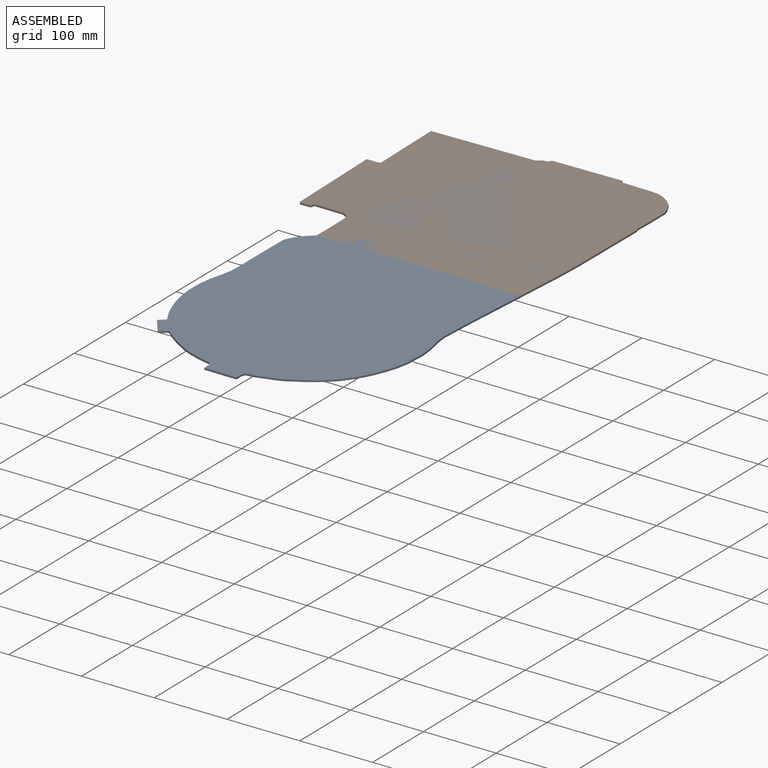
[diagram: assembled view]
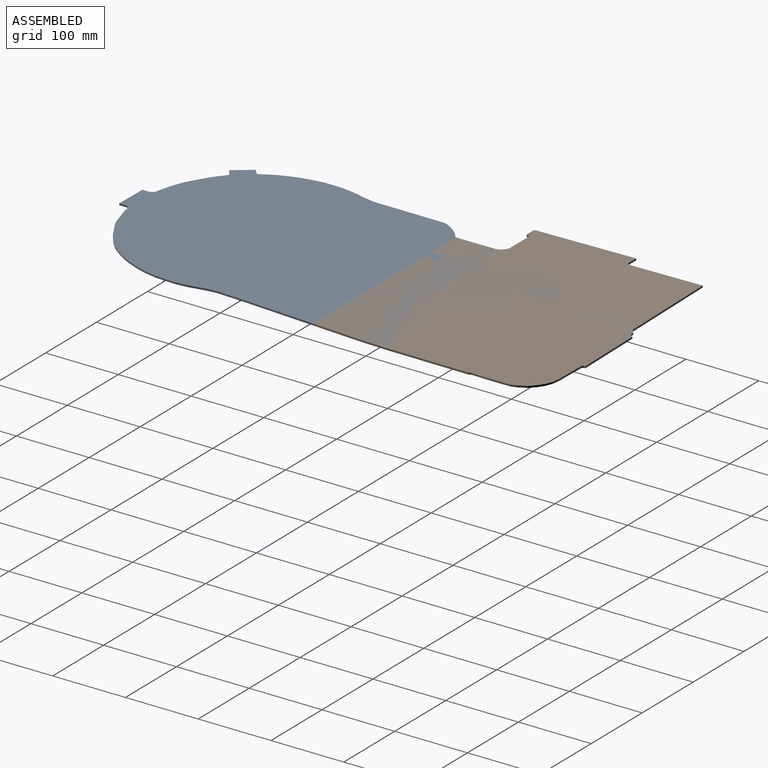
[diagram: assembled view, second angle]
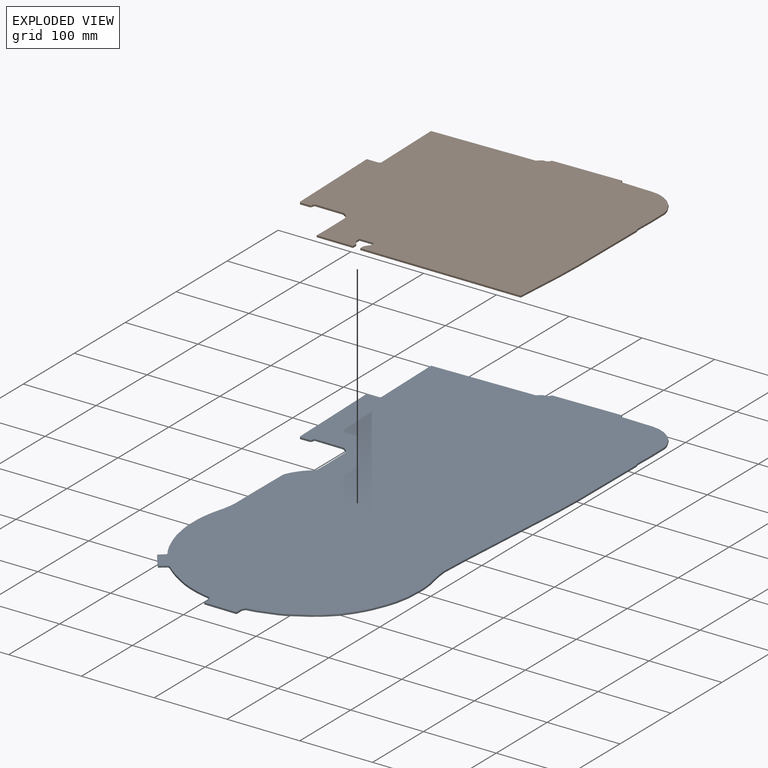
[diagram: exploded view]
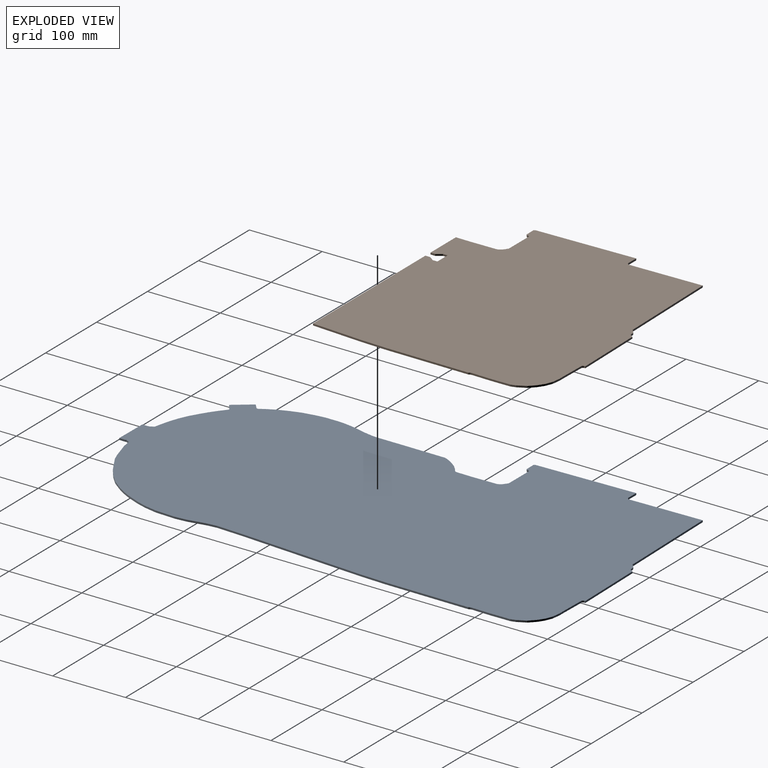
[diagram: exploded view, second angle]
ASSEMBLY  parts=2 mates=2
PART A: 99 faces, bbox 357.5x678.8x2.4 mm
  f0: plane 2.39x1.94mm, normal (0.72,-0.69,0), area 6.4mm2, adj f1,f2,f59,f96
  f1: plane 678.82x357.54mm, normal (0,0,1), area 200735.4mm2, adj f0,f3,f4,f5,f6,f7,f8,f9
  f2: plane 678.82x357.54mm, normal (0,0,-1), area 200735.4mm2, adj f0,f3,f4,f5,f6,f7,f8,f9
  f3: plane 135.35x2.9mm, normal (-0.02,1,0), area 323.2mm2, adj f1,f2,f4,f89
  f4: plane 100.57x2.39mm, normal (-1,-0.02,0), area 240.2mm2, adj f1,f2,f3,f5
  f5: plane 2.39x1.62mm, normal (-0.8,0.6,0), area 4.9mm2, adj f1,f2,f4,f6
  f6: plane 2.39x2.22mm, normal (-0.3,0.95,0), area 5.6mm2, adj f1,f2,f5,f7
  f7: plane 15.06x2.39mm, normal (0.01,1,0), area 36mm2, adj f1,f2,f6,f8
  f8: plane 70.21x2.39mm, normal (-1,-0.03,0), area 167.7mm2, adj f1,f2,f7,f9
  f9: plane 65.93x2.39mm, normal (-1,-0.03,0), area 157.5mm2, adj f1,f2,f8,f10
  f10: plane 2.39x1.71mm, normal (-0.79,-0.61,0), area 5.2mm2, adj f1,f2,f9,f11
  f11: plane 13.63x2.39mm, normal (0.01,-1,0), area 32.6mm2, adj f1,f2,f10,f12
  f12: plane 2.39x1.59mm, normal (0.67,-0.74,0), area 5.1mm2, adj f1,f2,f11,f13
  f13: plane 2.53x2.39mm, normal (1,0,0), area 6mm2, adj f1,f2,f12,f14
  f14: plane 2.39x1.56mm, normal (0.67,-0.74,0), area 5mm2, adj f1,f2,f13,f15
  f15: plane 39.11x2.39mm, normal (-0.01,-1,0), area 93.4mm2, adj f1,f2,f14,f16
  f16: plane 4.38x2.9mm, normal (-0.55,-0.83,0), area 12.5mm2, adj f1,f2,f15,f17
  f17: plane 2.5x2.39mm, normal (-0.67,-0.74,0), area 8mm2, adj f1,f2,f16,f18
  f18: plane 3.49x2.39mm, normal (-0.85,-0.53,0), area 9.8mm2, adj f1,f2,f17,f19
  f19: plane 2.68x2.39mm, normal (-0.99,-0.11,0), area 6.4mm2, adj f1,f2,f18,f20
  f20: plane 32.8x2.39mm, normal (-1,-0.01,0), area 78.3mm2, adj f1,f2,f19,f21
  f21: plane 18.14x2.39mm, normal (-1,0.01,0), area 43.3mm2, adj f1,f2,f20,f22
  f22: plane 3.85x2.39mm, normal (-1,0.07,0), area 9.2mm2, adj f1,f2,f21,f23
  f23: plane 2.39x2.03mm, normal (-0.85,0.53,0), area 5.7mm2, adj f1,f2,f22,f24
  f24: plane 4.93x3.79mm, normal (-0.61,0.79,0), area 14.8mm2, adj f1,f2,f23,f25
  f25: plane 4.8x4.67mm, normal (-0.7,0.72,0), area 16mm2, adj f1,f2,f24,f26
  f26: plane 3.64x2.92mm, normal (-0.78,0.63,0), area 11.1mm2, adj f1,f2,f25,f27
  f27: plane 6.57x4.67mm, normal (-0.81,0.58,0), area 19.2mm2, adj f1,f2,f26,f28
  f28: plane 7.3x3.88mm, normal (-0.88,0.47,0), area 19.7mm2, adj f1,f2,f27,f29
  f29: plane 4.11x2.39mm, normal (-0.95,0.3,0), area 10.3mm2, adj f1,f2,f28,f30
  f30: plane 35.08x2.39mm, normal (-1,0.01,0), area 83.8mm2, adj f1,f2,f29,f31
  f31: plane 14.67x2.39mm, normal (-1,0.01,0), area 35mm2, adj f1,f2,f30,f32
  f32: plane 42.04x2.39mm, normal (-1,0,0), area 100.4mm2, adj f1,f2,f31,f33
  f33: plane 8.42x2.39mm, normal (-1,0.07,0), area 20.1mm2, adj f1,f2,f32,f34
  f34: plane 12.54x2.39mm, normal (-0.98,0.18,0), area 30.4mm2, adj f1,f2,f33,f35
  f35: plane 10.46x2.83mm, normal (-0.97,0.26,0), area 25.9mm2, adj f1,f2,f34,f36
  f36: plane 9.97x2.39mm, normal (-0.98,0.21,0), area 24.4mm2, adj f1,f2,f35,f37
  f37: plane 12.1x2.39mm, normal (-0.99,0.15,0), area 29.2mm2, adj f1,f2,f36,f38
  f38: plane 7.55x2.39mm, normal (-1,0.07,0), area 18.1mm2, adj f1,f2,f37,f39
  f39: plane 18.33x2.39mm, normal (-1,0,0), area 43.8mm2, adj f1,f2,f38,f40
  f40: plane 12.62x2.39mm, normal (-0.99,-0.12,0), area 30.3mm2, adj f1,f2,f39,f41
  f41: plane 16.99x3.19mm, normal (-0.98,-0.18,0), area 41.3mm2, adj f1,f2,f40,f42
  f42: plane 13.39x4.21mm, normal (-0.95,-0.3,0), area 33.5mm2, adj f1,f2,f41,f43
  f43: plane 14.47x5.66mm, normal (-0.93,-0.36,0), area 37.1mm2, adj f1,f2,f42,f44
  f44: plane 11.96x6.09mm, normal (-0.89,-0.45,0), area 32mm2, adj f1,f2,f43,f45
  f45: plane 3.83x2.51mm, normal (-0.84,-0.55,0), area 10.9mm2, adj f1,f2,f44,f46
  f46: plane 2.39x2.26mm, normal (-0.86,-0.51,0), area 6.3mm2, adj f1,f2,f45,f47
  f47: plane 2.39x2.09mm, normal (-1,0,0), area 5mm2, adj f1,f2,f46,f48
  f48: plane 7.46x6.38mm, normal (-0.65,0.76,0), area 23.4mm2, adj f1,f2,f47,f49
  f49: plane 2.39x0.85mm, normal (-0.98,0.21,0), area 2.1mm2, adj f1,f2,f48,f50
  f50: plane 22.91x17.15mm, normal (-0.8,-0.6,0), area 68.3mm2, adj f1,f2,f49,f51
  f51: plane 2.39x0.78mm, normal (-0.44,-0.9,0), area 2.1mm2, adj f1,f2,f50,f52
  f52: plane 8.43x6.55mm, normal (0.61,-0.79,0), area 25.5mm2, adj f1,f2,f51,f53
  f53: plane 2.39x1.88mm, normal (-0.01,-1,0), area 4.5mm2, adj f1,f2,f52,f54
  f54: plane 2.39x0.81mm, normal (-0.44,-0.9,0), area 2.2mm2, adj f1,f2,f53,f90
  f55: plane 2.39x2.36mm, normal (-0.99,-0.16,0), area 5.7mm2, adj f1,f2,f56,f91
  f56: plane 7.73x2.39mm, normal (-1,0,0), area 18.5mm2, adj f1,f2,f55,f98
  f57: plane 8.19x2.39mm, normal (1,-0.01,0), area 19.5mm2, adj f1,f2,f58,f98
  f58: plane 2.39x1.26mm, normal (0.96,0.27,0), area 3.1mm2, adj f1,f2,f57,f95
  f59: plane 13.22x10.03mm, normal (0.8,-0.6,0), area 39.6mm2, adj f0,f1,f2,f60
  f60: plane 10.35x6.47mm, normal (0.85,-0.53,0), area 29.1mm2, adj f1,f2,f59,f61
  f61: plane 9.3x4.94mm, normal (0.88,-0.47,0), area 25.1mm2, adj f1,f2,f60,f62
  f62: plane 17.53x7.34mm, normal (0.92,-0.39,0), area 45.4mm2, adj f1,f2,f61,f63
  f63: plane 13.22x4.18mm, normal (0.95,-0.3,0), area 33.1mm2, adj f1,f2,f62,f64
  f64: plane 17.1x3.42mm, normal (0.98,-0.2,0), area 41.6mm2, adj f1,f2,f63,f65
  f65: plane 27.11x2.39mm, normal (1,-0.05,0), area 64.8mm2, adj f1,f2,f64,f66
  f66: plane 15.57x2.39mm, normal (1,0.09,0), area 37.3mm2, adj f1,f2,f65,f67
  f67: plane 24.62x4.8mm, normal (0.98,0.19,0), area 59.9mm2, adj f1,f2,f66,f68
  f68: plane 13.09x2.39mm, normal (0.99,0.1,0), area 31.4mm2, adj f1,f2,f67,f69
  f69: plane 38.93x2.39mm, normal (1,-0.05,0), area 93.1mm2, adj f1,f2,f68,f70
  f70: plane 166.87x11.39mm, normal (1,-0.07,0), area 399.4mm2, adj f1,f2,f69,f71
  f71: plane 37.15x2.39mm, normal (1,-0.04,0), area 88.8mm2, adj f1,f2,f70,f72
  f72: plane 112.75x2.39mm, normal (1,-0.01,0), area 269.2mm2, adj f1,f2,f71,f73
  f73: plane 2.39x1.92mm, normal (0.88,0.47,0), area 5.2mm2, adj f1,f2,f72,f74
  f74: plane 2.61x2.39mm, normal (0.99,0.12,0), area 6.3mm2, adj f1,f2,f73,f75
  f75: plane 25.38x2.39mm, normal (1,-0.02,0), area 60.6mm2, adj f1,f2,f74,f76
  f76: plane 27.2x2.39mm, normal (1,0.01,0), area 65mm2, adj f1,f2,f75,f77
  f77: plane 6.57x2.39mm, normal (0.96,0.29,0), area 16.4mm2, adj f1,f2,f76,f78
  f78: plane 11.29x5.9mm, normal (0.89,0.46,0), area 30.4mm2, adj f1,f2,f77,f79
  f79: plane 7.95x7.95mm, normal (0.71,0.71,0), area 26.9mm2, adj f1,f2,f78,f80
  f80: plane 8.07x5.44mm, normal (0.56,0.83,0), area 23.2mm2, adj f1,f2,f79,f81
  f81: plane 9.04x3.74mm, normal (0.38,0.92,0), area 23.4mm2, adj f1,f2,f80,f82
  f82: plane 11.39x2.39mm, normal (0.14,0.99,0), area 27.5mm2, adj f1,f2,f81,f83
  f83: plane 8.2x2.39mm, normal (0,1,0), area 19.6mm2, adj f1,f2,f82,f84
  f84: plane 34.27x2.39mm, normal (0.02,1,0), area 81.8mm2, adj f1,f2,f83,f85
  f85: plane 2.39x2.09mm, normal (0.85,0.53,0), area 5.9mm2, adj f1,f2,f84,f86
  f86: plane 2.39x1.81mm, normal (1,0,0), area 4.3mm2, adj f1,f2,f85,f87
  f87: plane 94.99x2.39mm, normal (-0.02,1,0), area 226.8mm2, adj f1,f2,f86,f88
  f88: extruded ~15.4x10.42mm, area 46.8mm2, adj f1,f2,f87,f89
  f89: plane 6.35x2.39mm, normal (0,1,0), area 15.2mm2, adj f1,f2,f3,f88
  f90: cylinder r=180.26mm len=27.75mm, axis (0,0,1), area 82mm2, adj f1,f2,f54,f94
  f91: plane 4.85x2.99mm, normal (-0.85,-0.53,0), area 13.6mm2, adj f1,f2,f55,f92
  f92: plane 9.34x2.39mm, normal (-0.21,-0.98,0), area 22.8mm2, adj f1,f2,f91,f93
  f93: cylinder r=147.47mm len=35.22mm, axis (0,0,1), area 89.5mm2, adj f1,f2,f92,f94
  f94: plane 11.73x6.91mm, normal (-0.51,-0.86,0), area 32.5mm2, adj f1,f2,f90,f93
  f95: plane 5.23x2.43mm, normal (0.91,-0.42,0), area 13.8mm2, adj f1,f2,f58,f97
  f96: extruded ~82.24x45.05mm, area 226.9mm2, adj f0,f1,f2,f97
  f97: plane 12.06x2.39mm, normal (0.16,-0.99,0), area 29.2mm2, adj f1,f2,f95,f96
  f98: plane 44.48x2.39mm, normal (-0.01,-1,0), area 106.2mm2, adj f1,f2,f56,f57
PART B: 51 faces, bbox 357.5x316.6x2.4 mm
  f0: plane 50x2.39mm, normal (0,-1,0), area 119.4mm2, adj f2,f3,f23,f50
  f1: plane 68.27x4.66mm, normal (1,-0.07,0), area 163.4mm2, adj f2,f3,f24,f43
  f2: plane 357.54x316.57mm, normal (0,0,1), area 102634.3mm2, adj f0,f1,f4,f5,f6,f7,f8,f9
  f3: plane 357.54x316.57mm, normal (0,0,-1), area 102634.3mm2, adj f0,f1,f4,f5,f6,f7,f8,f9
  f4: plane 135.35x2.9mm, normal (-0.02,1,0), area 323.2mm2, adj f2,f3,f5,f42
  f5: plane 100.57x2.39mm, normal (-1,-0.02,0), area 240.2mm2, adj f2,f3,f4,f6
  f6: plane 2.39x1.62mm, normal (-0.8,0.6,0), area 4.9mm2, adj f2,f3,f5,f7
  f7: plane 2.39x2.22mm, normal (-0.3,0.95,0), area 5.6mm2, adj f2,f3,f6,f8
  f8: plane 15.06x2.39mm, normal (0.01,1,0), area 36mm2, adj f2,f3,f7,f9
  f9: plane 70.21x2.39mm, normal (-1,-0.03,0), area 167.7mm2, adj f2,f3,f8,f10
  f10: plane 65.93x2.39mm, normal (-1,-0.03,0), area 157.5mm2, adj f2,f3,f9,f11
  f11: plane 2.39x1.71mm, normal (-0.79,-0.61,0), area 5.2mm2, adj f2,f3,f10,f12
  f12: plane 13.63x2.39mm, normal (0.01,-1,0), area 32.6mm2, adj f2,f3,f11,f13
  f13: plane 2.39x1.59mm, normal (0.67,-0.74,0), area 5.1mm2, adj f2,f3,f12,f14
  f14: plane 2.53x2.39mm, normal (1,0,0), area 6mm2, adj f2,f3,f13,f15
  f15: plane 2.39x1.56mm, normal (0.67,-0.74,0), area 5mm2, adj f2,f3,f14,f16
  f16: plane 39.11x2.39mm, normal (-0.01,-1,0), area 93.4mm2, adj f2,f3,f15,f17
  f17: plane 4.38x2.9mm, normal (-0.55,-0.83,0), area 12.5mm2, adj f2,f3,f16,f18
  f18: plane 2.5x2.39mm, normal (-0.67,-0.74,0), area 8mm2, adj f2,f3,f17,f19
  f19: plane 3.49x2.39mm, normal (-0.85,-0.53,0), area 9.8mm2, adj f2,f3,f18,f20
  f20: plane 2.68x2.39mm, normal (-0.99,-0.11,0), area 6.4mm2, adj f2,f3,f19,f21
  f21: plane 32.8x2.39mm, normal (-1,-0.01,0), area 78.3mm2, adj f2,f3,f20,f22
  f22: plane 18.14x2.39mm, normal (-1,0.01,0), area 43.3mm2, adj f2,f3,f21,f23
  f23: plane 3.85x2.39mm, normal (-1,0.07,0), area 9.2mm2, adj f0,f2,f3,f22
  f24: plane 37.15x2.39mm, normal (1,-0.04,0), area 88.8mm2, adj f1,f2,f3,f25
  f25: plane 112.75x2.39mm, normal (1,-0.01,0), area 269.2mm2, adj f2,f3,f24,f26
  f26: plane 2.39x1.92mm, normal (0.88,0.47,0), area 5.2mm2, adj f2,f3,f25,f27
  f27: plane 2.61x2.39mm, normal (0.99,0.12,0), area 6.3mm2, adj f2,f3,f26,f28
  f28: plane 25.38x2.39mm, normal (1,-0.02,0), area 60.6mm2, adj f2,f3,f27,f29
  f29: plane 27.2x2.39mm, normal (1,0.01,0), area 65mm2, adj f2,f3,f28,f30
  f30: plane 6.57x2.39mm, normal (0.96,0.29,0), area 16.4mm2, adj f2,f3,f29,f31
  f31: plane 11.29x5.9mm, normal (0.89,0.46,0), area 30.4mm2, adj f2,f3,f30,f32
  f32: plane 7.95x7.95mm, normal (0.71,0.71,0), area 26.9mm2, adj f2,f3,f31,f33
  f33: plane 8.07x5.44mm, normal (0.56,0.83,0), area 23.2mm2, adj f2,f3,f32,f34
  f34: plane 9.04x3.74mm, normal (0.38,0.92,0), area 23.4mm2, adj f2,f3,f33,f35
  f35: plane 11.39x2.39mm, normal (0.14,0.99,0), area 27.5mm2, adj f2,f3,f34,f36
  f36: plane 8.2x2.39mm, normal (0,1,0), area 19.6mm2, adj f2,f3,f35,f37
  f37: plane 34.27x2.39mm, normal (0.02,1,0), area 81.8mm2, adj f2,f3,f36,f38
  f38: plane 2.39x2.09mm, normal (0.85,0.53,0), area 5.9mm2, adj f2,f3,f37,f39
  f39: plane 2.39x1.81mm, normal (1,0,0), area 4.3mm2, adj f2,f3,f38,f40
  f40: plane 94.99x2.39mm, normal (-0.02,1,0), area 226.8mm2, adj f2,f3,f39,f41
  f41: extruded ~15.4x10.42mm, area 46.8mm2, adj f2,f3,f40,f42
  f42: plane 6.35x2.39mm, normal (0,1,0), area 15.2mm2, adj f2,f3,f4,f41
  f43: plane 220.67x2.39mm, normal (0,-1,0), area 526.9mm2, adj f1,f2,f3,f44
  f44: plane 6.41x2.39mm, normal (-1,0,0), area 15.3mm2, adj f2,f3,f43,f45
  f45: plane 7.23x5mm, normal (-0.82,0.57,0), area 21mm2, adj f2,f3,f44,f46
  f46: plane 6.36x2.39mm, normal (-1,0,0), area 15.2mm2, adj f2,f3,f45,f47
  f47: plane 20x2.39mm, normal (0,-1,0), area 47.8mm2, adj f2,f3,f46,f48
  f48: plane 6.36x2.39mm, normal (1,0,0), area 15.2mm2, adj f2,f3,f47,f49
  f49: plane 7.23x5mm, normal (0.82,0.57,0), area 21mm2, adj f2,f3,f48,f50
  f50: plane 6.41x2.39mm, normal (1,0,0), area 15.3mm2, adj f0,f2,f3,f49
PLACE A t=(114.25,-263.75,-49.04)mm
PLACE B t=(114.25,-263.75,-49.04)mm
MATE planar B.f2 <-> A.f1  axis (0,0,1) through (137.51,-64.25,-46.65)mm
MATE planar A.f1 <-> B.f2  axis (0,0,1) through (140.11,-221.57,-46.65)mm
